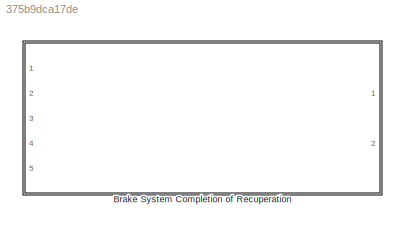
MODEL slx_375b9dca17de
KIND library
CONFIG AbsTol = auto
CONFIG EnableMultiTasking = off
CONFIG FixedStep = auto
CONFIG MaxStep = auto
CONFIG MinStep = auto
CONFIG RelTol = 1e-3
CONFIG SampleTimeConstraint = Unconstrained
CONFIG Solver = VariableStepAuto
CONFIG SolverName = VariableStepAuto
CONFIG StartTime = 0.0
CONFIG StopTime = 10.0
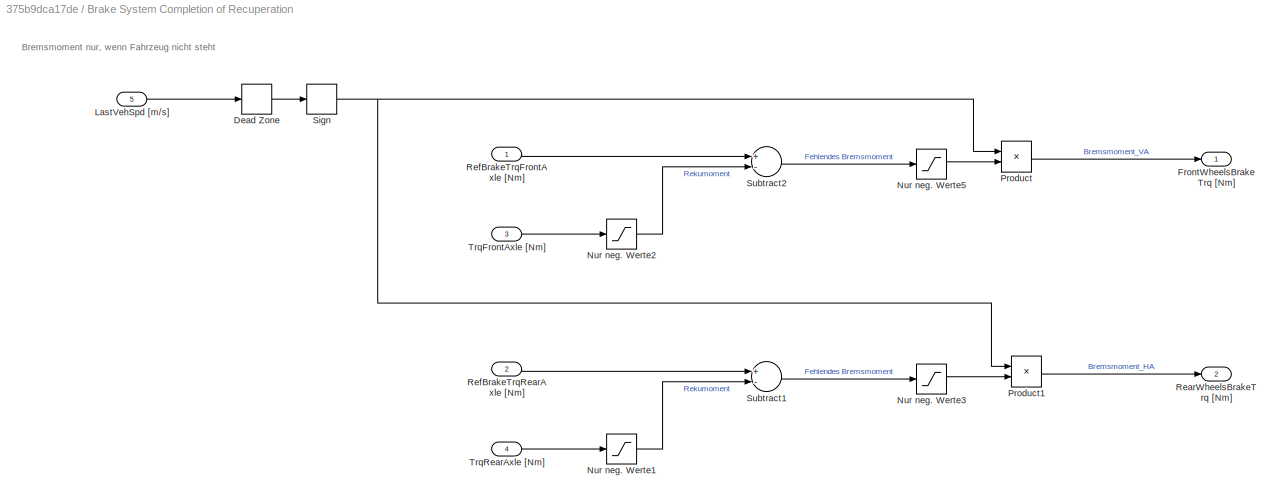
BLOCK [SubSystem] Brake System Completion of Recuperation
  Ports = [5, 2]
  RequestExecContextInheritance = off
BLOCK [DeadZone] Brake System Completion of Recuperation/Dead Zone
  LowerValue = -0.2
  UpperValue = 0.2
BLOCK [Outport] Brake System Completion of Recuperation/FrontWheelsBrakeTrq [Nm]
  IconDisplay = Port number
  SampleTime = GlobalSampleTime
BLOCK [Inport] Brake System Completion of Recuperation/LastVehSpd [m//s]
  IconDisplay = Port number
  Port = 5
  SampleTime = LocalSampleTime
BLOCK [Saturate] Brake System Completion of Recuperation/Nur neg. Werte1
  InputPortMap = u0
  LowerLimit = -inf
  Ports = [1, 1]
  UpperLimit = 0
BLOCK [Saturate] Brake System Completion of Recuperation/Nur neg. Werte2
  InputPortMap = u0
  LowerLimit = -inf
  Ports = [1, 1]
  UpperLimit = 0
BLOCK [Saturate] Brake System Completion of Recuperation/Nur neg. Werte3
  InputPortMap = u0
  LowerLimit = -inf
  Ports = [1, 1]
  UpperLimit = 0
BLOCK [Saturate] Brake System Completion of Recuperation/Nur neg. Werte5
  InputPortMap = u0
  LowerLimit = -inf
  Ports = [1, 1]
  UpperLimit = 0
BLOCK [Product] Brake System Completion of Recuperation/Product
  InputSameDT = off
  OutDataTypeStr = Inherit: Inherit via internal rule
  Ports = [2, 1]
  RndMeth = Floor
  SaturateOnIntegerOverflow = off
BLOCK [Product] Brake System Completion of Recuperation/Product1
  InputSameDT = off
  OutDataTypeStr = Inherit: Inherit via internal rule
  Ports = [2, 1]
  RndMeth = Floor
  SaturateOnIntegerOverflow = off
BLOCK [Outport] Brake System Completion of Recuperation/RearWheelsBrakeTrq [Nm]
  IconDisplay = Port number
  Port = 2
  SampleTime = GlobalSampleTime
BLOCK [Inport] Brake System Completion of Recuperation/RefBrakeTrqFrontAxle [Nm]
  IconDisplay = Port number
  SampleTime = LocalSampleTime
BLOCK [Inport] Brake System Completion of Recuperation/RefBrakeTrqRearAxle [Nm]
  IconDisplay = Port number
  Port = 2
  SampleTime = LocalSampleTime
BLOCK [Signum] Brake System Completion of Recuperation/Sign
BLOCK [Sum] Brake System Completion of Recuperation/Subtract1
  InputSameDT = off
  Inputs = +-
  OutDataTypeStr = Inherit: Inherit via internal rule
  Ports = [2, 1]
  SaturateOnIntegerOverflow = off
BLOCK [Sum] Brake System Completion of Recuperation/Subtract2
  InputSameDT = off
  Inputs = +-
  OutDataTypeStr = Inherit: Inherit via internal rule
  Ports = [2, 1]
  SaturateOnIntegerOverflow = off
BLOCK [Inport] Brake System Completion of Recuperation/TrqFrontAxle [Nm]
  IconDisplay = Port number
  Port = 3
  SampleTime = LocalSampleTime
BLOCK [Inport] Brake System Completion of Recuperation/TrqRearAxle [Nm]
  IconDisplay = Port number
  Port = 4
  SampleTime = LocalSampleTime
ANNOTATION Brake System Completion of Recuperation: Bremsmoment nur, wenn Fahrzeug nicht steht
LINE Brake System Completion of Recuperation/Dead Zone:1 -> Brake System Completion of Recuperation/Sign:1
LINE Brake System Completion of Recuperation/LastVehSpd [m//s]:1 -> Brake System Completion of Recuperation/Dead Zone:1
LINE Brake System Completion of Recuperation/Nur neg. Werte1:1 -> Brake System Completion of Recuperation/Subtract1:2
LINE Brake System Completion of Recuperation/Nur neg. Werte2:1 -> Brake System Completion of Recuperation/Subtract2:2
LINE Brake System Completion of Recuperation/Nur neg. Werte3:1 -> Brake System Completion of Recuperation/Product1:2
LINE Brake System Completion of Recuperation/Nur neg. Werte5:1 -> Brake System Completion of Recuperation/Product:2
LINE Brake System Completion of Recuperation/Product1:1 -> Brake System Completion of Recuperation/RearWheelsBrakeTrq [Nm]:1
LINE Brake System Completion of Recuperation/Product:1 -> Brake System Completion of Recuperation/FrontWheelsBrakeTrq [Nm]:1
LINE Brake System Completion of Recuperation/RefBrakeTrqFrontAxle [Nm]:1 -> Brake System Completion of Recuperation/Subtract2:1
LINE Brake System Completion of Recuperation/RefBrakeTrqRearAxle [Nm]:1 -> Brake System Completion of Recuperation/Subtract1:1
NET Brake System Completion of Recuperation/Sign:1 -> Brake System Completion of Recuperation/Product1:1, Brake System Completion of Recuperation/Product:1
LINE Brake System Completion of Recuperation/Subtract1:1 -> Brake System Completion of Recuperation/Nur neg. Werte3:1
LINE Brake System Completion of Recuperation/Subtract2:1 -> Brake System Completion of Recuperation/Nur neg. Werte5:1
LINE Brake System Completion of Recuperation/TrqFrontAxle [Nm]:1 -> Brake System Completion of Recuperation/Nur neg. Werte2:1
LINE Brake System Completion of Recuperation/TrqRearAxle [Nm]:1 -> Brake System Completion of Recuperation/Nur neg. Werte1:1
note: NET lines group one-source signal fan-out (src -> all destinations, sorted); 1:1 wires keep LINE
